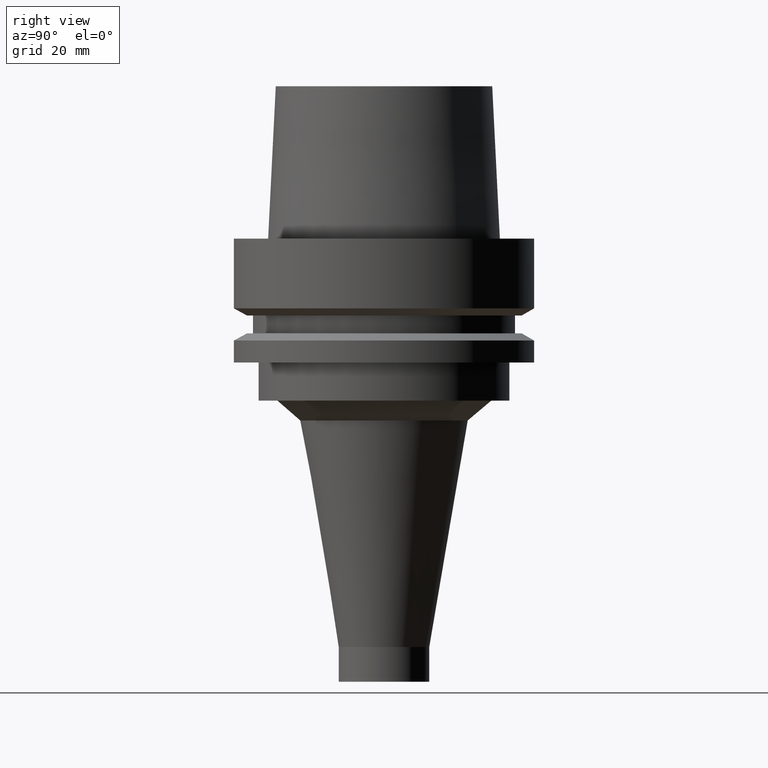
[diagram: clean part render]
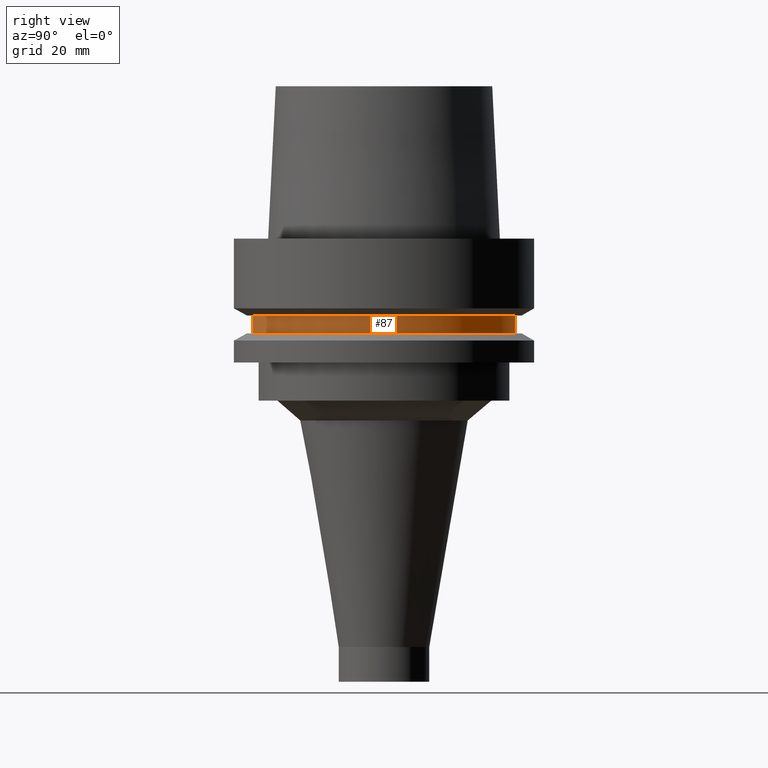
[diagram: same view with one face highlighted and labeled with its STEP entity id]
A machine part, right view. The second image highlights one B-rep face of the part: STEP entity #87.
In plain terms, the highlighted cylindrical surface (bore or boss wall) has radius 27.5 mm, axis along (-0, -0, 1).
Its self-contained STEP definition (entity closure, byte-faithful):
#87=ADVANCED_FACE('',(#128,#129),#130,.T.);
#128=FACE_BOUND('',#177,.T.);
#129=FACE_BOUND('',#178,.T.);
#130=CYLINDRICAL_SURFACE('',#179,27.5);
#177=EDGE_LOOP('',(#250));
#178=EDGE_LOOP('',(#251));
#179=AXIS2_PLACEMENT_3D('',#252,#253,#254);
#250=ORIENTED_EDGE('',*,*,#287,.F.);
#251=ORIENTED_EDGE('',*,*,#286,.T.);
#252=CARTESIAN_POINT('',(1.10218211923262E-015,2.20436423846524E-015,-18.0));
#253=DIRECTION('',(-6.12323399573677E-017,-1.22464679914735E-016,1.0));
#254=DIRECTION('',(-1.23259516440783E-032,1.0,1.22464679914735E-016));
#286=EDGE_CURVE('',#314,#314,#315,.T.);
#287=EDGE_CURVE('',#316,#316,#317,.T.);
#314=VERTEX_POINT('',#346);
#315=CIRCLE('',#347,27.5);
#316=VERTEX_POINT('',#348);
#317=CIRCLE('',#349,27.5);
#346=CARTESIAN_POINT('',(9.87371481812553E-016,27.5,-16.125));
#347=AXIS2_PLACEMENT_3D('',#390,#391,#392);
#348=CARTESIAN_POINT('',(1.21699275665268E-015,27.5,-19.875));
#349=AXIS2_PLACEMENT_3D('',#393,#394,#395);
#390=CARTESIAN_POINT('',(9.87371481812553E-016,1.97474296362511E-015,-16.125));
#391=DIRECTION('',(6.12323399573677E-017,1.22464679914735E-016,-1.0));
#392=DIRECTION('',(-1.23259516440783E-032,1.0,1.22464679914735E-016));
#393=CARTESIAN_POINT('',(1.21699275665268E-015,2.43398551330536E-015,-19.875));
#394=DIRECTION('',(6.12323399573677E-017,1.22464679914735E-016,-1.0));
#395=DIRECTION('',(-1.23259516440783E-032,1.0,1.22464679914735E-016));